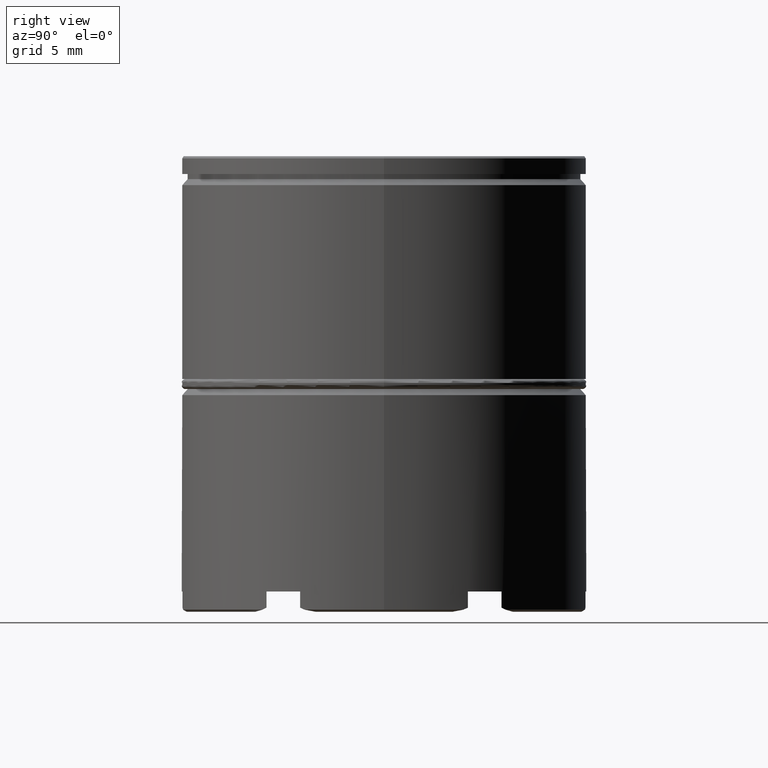
[diagram: clean part render]
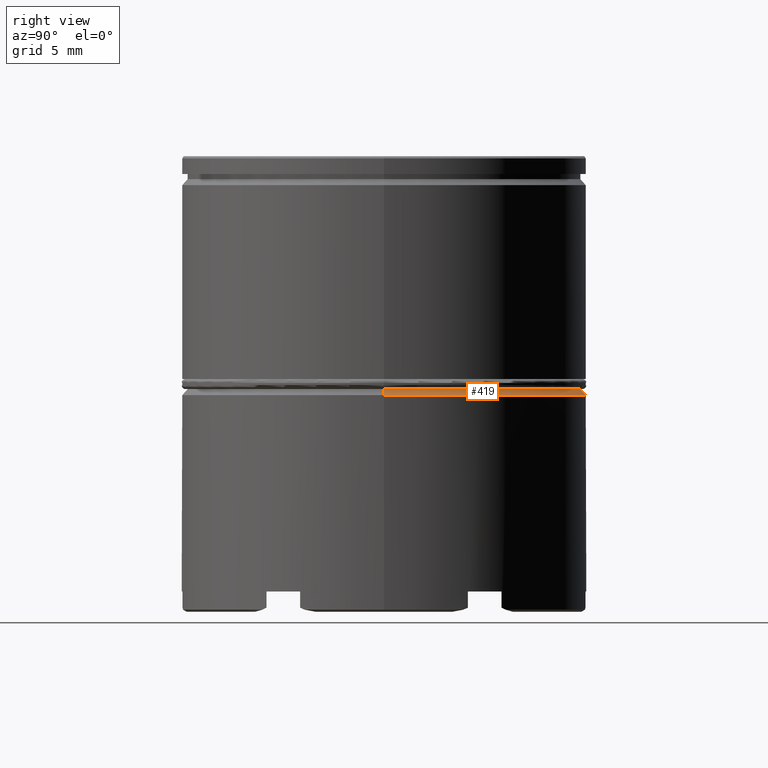
[diagram: same view with one face highlighted and labeled with its STEP entity id]
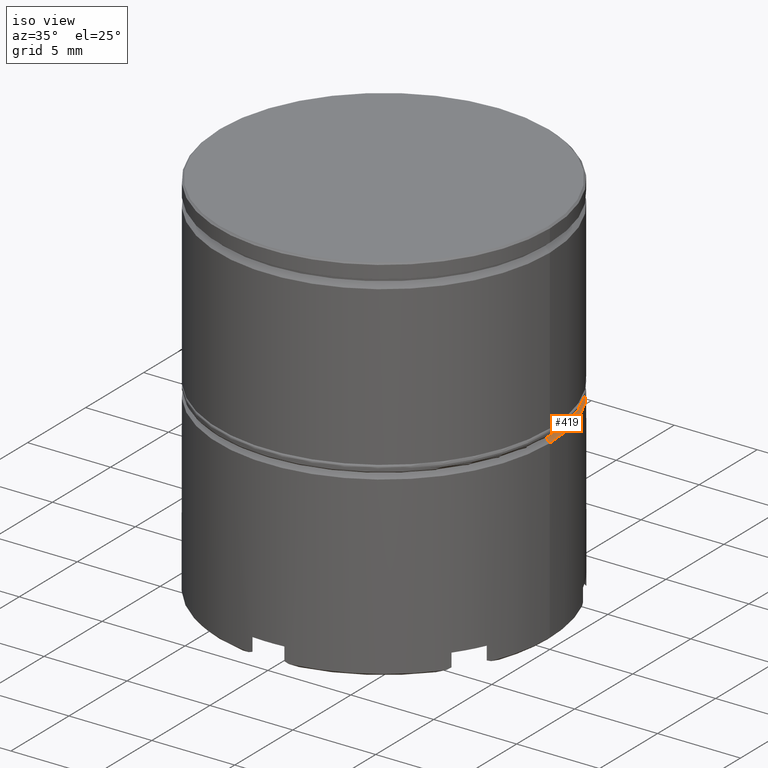
[diagram: same view with one face highlighted and labeled with its STEP entity id]
A machine part, right view. The second image highlights one B-rep face of the part: STEP entity #419.
A second angle (iso view) of the same face is appended — the face is thin or edge-on in the first view.
In plain terms, the highlighted conical surface has half-angle 45 deg.
Its self-contained STEP definition (entity closure, byte-faithful):
#40 = DIRECTION ( 'NONE',  ( 0.000000000000000000, 0.000000000000000000, -1.000000000000000000 ) ) ;
#46 = DIRECTION ( 'NONE',  ( 1.000000000000000000, 0.000000000000000000, 0.000000000000000000 ) ) ;
#69 = DIRECTION ( 'NONE',  ( -1.000000000000000000, 0.000000000000000000, 0.000000000000000000 ) ) ;
#116 = EDGE_CURVE ( 'NONE', #170, #1195, #950, .T. ) ;
#170 = VERTEX_POINT ( 'NONE', #252 ) ;
#202 = DIRECTION ( 'NONE',  ( -0.7071067811865454633, 0.000000000000000000, -0.7071067811865495711 ) ) ;
#224 = EDGE_LOOP ( 'NONE', ( #1020, #495, #265, #1598 ) ) ;
#225 = LINE ( 'NONE', #848, #1036 ) ;
#252 = CARTESIAN_POINT ( 'NONE',  ( 9.700000000000001066, 0.000000000000000000, -11.50000000000000000 ) ) ;
#253 = EDGE_CURVE ( 'NONE', #170, #773, #301, .T. ) ;
#265 = ORIENTED_EDGE ( 'NONE', *, *, #836, .F. ) ;
#301 = LINE ( 'NONE', #1568, #1537 ) ;
#395 = DIRECTION ( 'NONE',  ( -0.000000000000000000, -0.000000000000000000, 1.000000000000000000 ) ) ;
#419 = ADVANCED_FACE ( 'NONE', ( #590 ), #945, .T. ) ;
#495 = ORIENTED_EDGE ( 'NONE', *, *, #253, .T. ) ;
#590 = FACE_OUTER_BOUND ( 'NONE', #224, .T. ) ;
#671 = CIRCLE ( 'NONE', #805, 10.00000000000000000 ) ;
#674 = CARTESIAN_POINT ( 'NONE',  ( 0.000000000000000000, 0.000000000000000000, -11.80000000000000071 ) ) ;
#722 = CARTESIAN_POINT ( 'NONE',  ( -10.00000000000000000, 1.224646799147353256E-15, -11.80000000000000071 ) ) ;
#725 = EDGE_CURVE ( 'NONE', #1195, #1183, #225, .T. ) ;
#773 = VERTEX_POINT ( 'NONE', #1396 ) ;
#805 = AXIS2_PLACEMENT_3D ( 'NONE', #674, #40, #46 ) ;
#836 = EDGE_CURVE ( 'NONE', #1183, #773, #671, .T. ) ;
#848 = CARTESIAN_POINT ( 'NONE',  ( -9.700000000000001066, 0.000000000000000000, -11.50000000000000000 ) ) ;
#945 = CONICAL_SURFACE ( 'NONE', #1240, 9.700000000000001066, 0.7853981633974453924 ) ;
#950 = CIRCLE ( 'NONE', #1272, 9.700000000000001066 ) ;
#1020 = ORIENTED_EDGE ( 'NONE', *, *, #116, .F. ) ;
#1036 = VECTOR ( 'NONE', #202, 1000.000000000000227 ) ;
#1055 = CARTESIAN_POINT ( 'NONE',  ( -9.700000000000001066, 1.187907395172932594E-15, -11.50000000000000000 ) ) ;
#1110 = CARTESIAN_POINT ( 'NONE',  ( 0.000000000000000000, 0.000000000000000000, -11.50000000000000000 ) ) ;
#1130 = DIRECTION ( 'NONE',  ( 1.000000000000000000, 0.000000000000000000, 0.000000000000000000 ) ) ;
#1183 = VERTEX_POINT ( 'NONE', #722 ) ;
#1191 = DIRECTION ( 'NONE',  ( 0.7071067811865454633, 8.659560562354906974E-17, -0.7071067811865495711 ) ) ;
#1195 = VERTEX_POINT ( 'NONE', #1055 ) ;
#1200 = DIRECTION ( 'NONE',  ( 0.000000000000000000, 0.000000000000000000, -1.000000000000000000 ) ) ;
#1240 = AXIS2_PLACEMENT_3D ( 'NONE', #1110, #1200, #69 ) ;
#1272 = AXIS2_PLACEMENT_3D ( 'NONE', #1540, #395, #1130 ) ;
#1396 = CARTESIAN_POINT ( 'NONE',  ( 10.00000000000000000, 0.000000000000000000, -11.80000000000000071 ) ) ;
#1537 = VECTOR ( 'NONE', #1191, 1000.000000000000227 ) ;
#1540 = CARTESIAN_POINT ( 'NONE',  ( 0.000000000000000000, 0.000000000000000000, -11.50000000000000000 ) ) ;
#1568 = CARTESIAN_POINT ( 'NONE',  ( 9.700000000000001066, 1.187907395172932594E-15, -11.50000000000000000 ) ) ;
#1598 = ORIENTED_EDGE ( 'NONE', *, *, #725, .F. ) ;